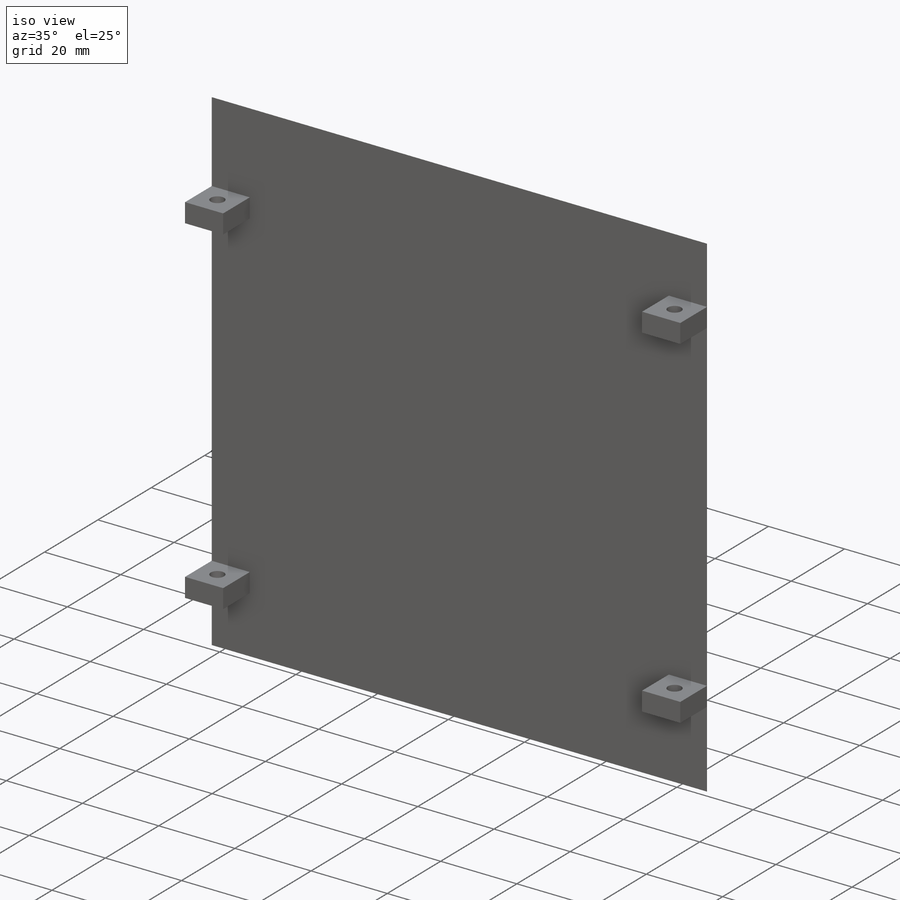
[diagram: iso view]
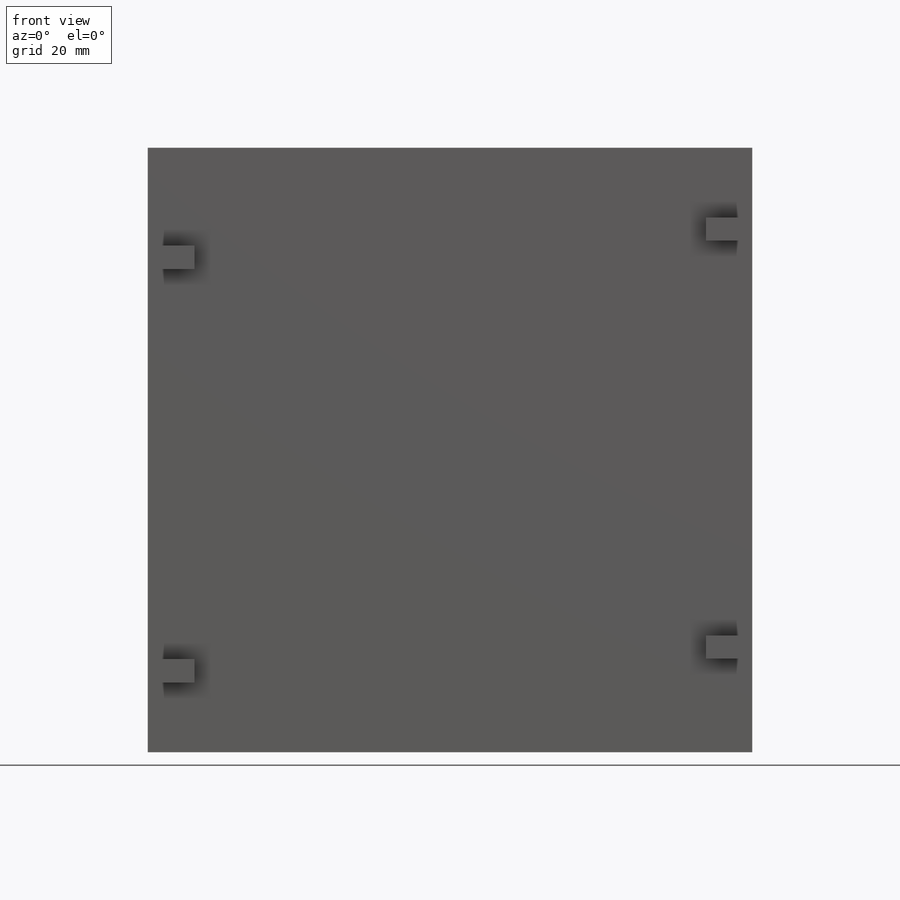
[diagram: front view]
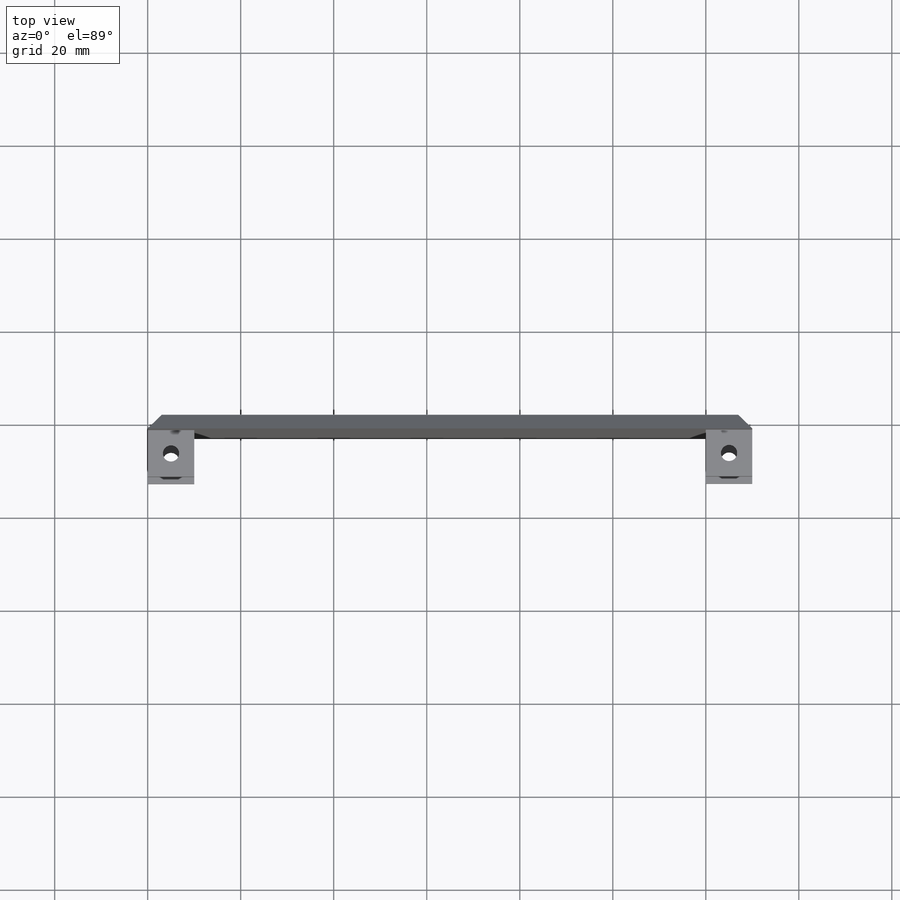
[diagram: top view]
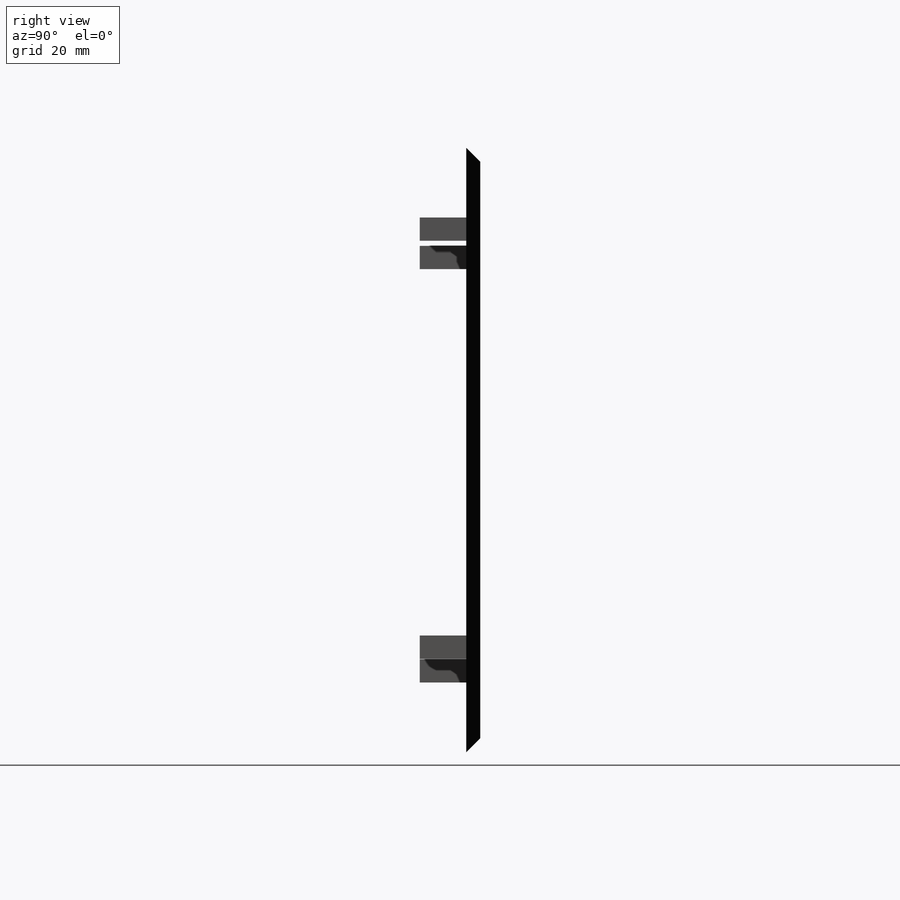
[diagram: right view]
SOLIDWORKS PART (.sldprt)
format: sldprt  version: not decoded by parser v0  size: 308,224 bytes
history: native  units: mm
features: sketch x6, plane x3, cut_extrude x3, extrude x2, material x1, chamfer x1 (+9 scaffold rows collapsed)
feature tree (25):
  scaffold x9  (default folders/planes/origin — collapsed)
  material  "Matériau <non spécifié>"
  plane  "Plan de face"
  plane  "Plan de dessus"
  plane  "Plan de droite"
  sketch  "Esquisse1"  dims[D1=130.0mm D2=130.0mm]
  extrude  "Boss.-Extru.1"  Depth=3mm
  chamfer  "Chanfrein1"  Distance=3mm Angle=45deg
  sketch  "Esquisse2"  dims[c1.D1=10.0mm c1.D2=5.0mm c1.D3=5.0mm c1.D4=10.0mm c1.D5=15.0mm c1.D6=20.1mm c2.D5=20.1mm c2.D6=15.0mm c2.D7=10.0mm c2.D8=5.0mm c2.D9=5.0mm c2.D10=10.0mm c2.D11=21.1mm c2.D12=15.0mm]
  extrude  "Boss.-Extru.2"  Depth=10mm
  sketch  "Esquisse4"  dims[D1=3.5mm]
  cut_extrude  "Enlèv. mat.-Extru.1"  [1 undecoded]
  sketch  "Esquisse5"  dims[D1=3.5mm]
  cut_extrude  "Enlèv. mat.-Extru.2"  [1 undecoded]
  sketch  "Esquisse6"
  cut_extrude  "Enlèv. mat.-Extru.3"  Depth=2.6mm
  sketch  "Esquisse3D2"
decode coverage: 8 of 12 modeling features carry decoded parameters
note: 2 parameter values undecoded
note: suppression state not decoded; provenance and decode notes live in map.json
